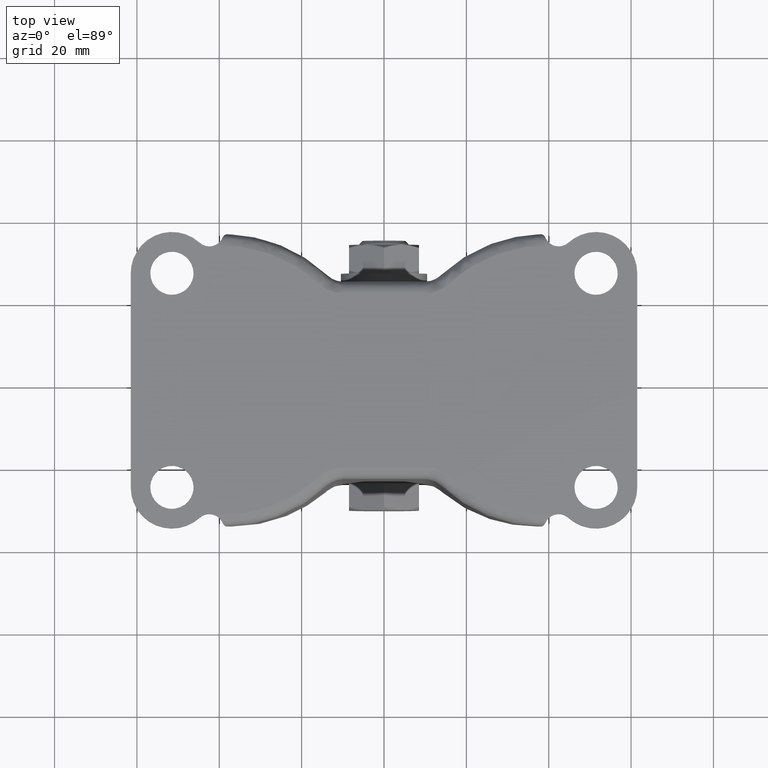
[diagram: clean part render]
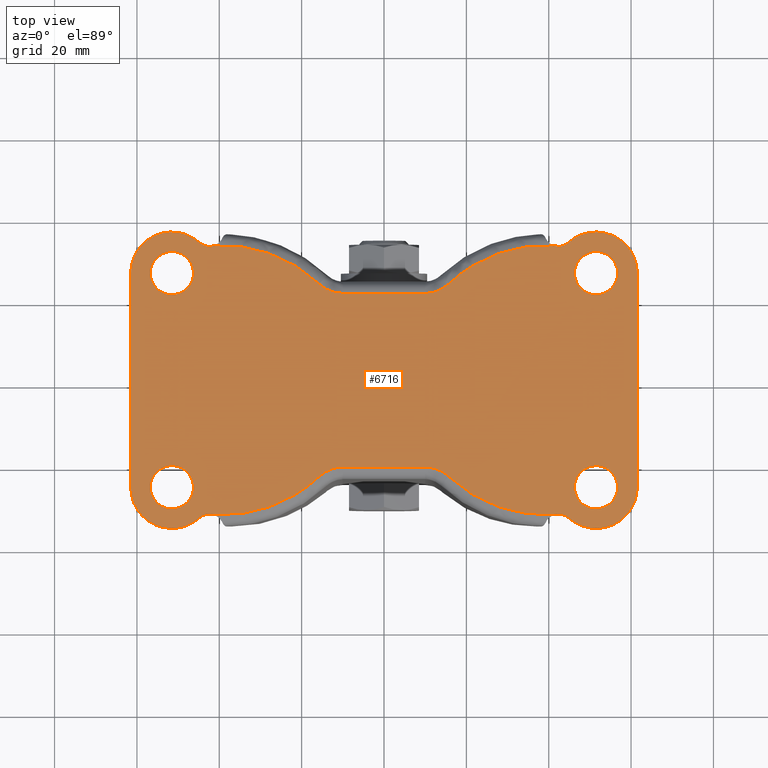
[diagram: same view with one face highlighted and labeled with its STEP entity id]
A machine part, top view. The second image highlights one B-rep face of the part: STEP entity #6716.
In plain terms, the highlighted face is a freeform B-spline surface patch.
Its self-contained STEP definition (entity closure, byte-faithful):
#2359=CARTESIAN_POINT('',(-51.820504832809867,20.759792308300600,1.318390E-016));
#2360=VERTEX_POINT('',#2359);
#2361=CARTESIAN_POINT('',(-46.250000000000000,26.0,0.0));
#2362=VERTEX_POINT('',#2361);
#2363=CARTESIAN_POINT('',(-51.820504832809881,20.759792308300604,0.0));
#2364=CARTESIAN_POINT('',(-51.660402007443885,20.749999999999996,0.0));
#2365=CARTESIAN_POINT('',(-51.500000000000000,20.750000000000000,0.0));
#2366=CARTESIAN_POINT('',(-46.249999999999993,20.750000000000000,0.0));
#2367=CARTESIAN_POINT('',(-46.250000000000000,26.0,0.0));
#2375=(BOUNDED_CURVE()B_SPLINE_CURVE(2,(#2363,#2364,#2365,#2366,#2367),.UNSPECIFIED.,.F.,.U.)B_SPLINE_CURVE_WITH_KNOTS((3,2,3),(0.239332962233675,0.250000000000000,0.500000000000000),.UNSPECIFIED.)CURVE()GEOMETRIC_REPRESENTATION_ITEM()RATIONAL_B_SPLINE_CURVE((0.976072041655427,0.987502787893665,1.0,0.707106781186547,1.0))REPRESENTATION_ITEM(''));
#2376=EDGE_CURVE('',#2360,#2362,#2375,.T.);
#2378=CARTESIAN_POINT('',(-51.179495167190133,31.240207691699400,1.318390E-016));
#2379=VERTEX_POINT('',#2378);
#2380=CARTESIAN_POINT('',(-46.250000000000000,26.0,0.0));
#2381=CARTESIAN_POINT('',(-46.250000000000000,30.938706851017070,0.0));
#2382=CARTESIAN_POINT('',(-51.179495167190126,31.240207691699403,0.0));
#2390=(BOUNDED_CURVE()B_SPLINE_CURVE(2,(#2380,#2381,#2382),.UNSPECIFIED.,.F.,.U.)B_SPLINE_CURVE_WITH_KNOTS((3,3),(0.500000000000000,0.739332962233675),.UNSPECIFIED.)CURVE()GEOMETRIC_REPRESENTATION_ITEM()RATIONAL_B_SPLINE_CURVE((1.0,0.719603993292882,0.976072041655427))REPRESENTATION_ITEM(''));
#2391=EDGE_CURVE('',#2362,#2379,#2390,.T.);
#2458=CARTESIAN_POINT('',(-56.749999999999993,26.0,0.0));
#2459=VERTEX_POINT('',#2458);
#2460=CARTESIAN_POINT('',(-56.749999999999993,26.0,0.0));
#2461=CARTESIAN_POINT('',(-56.749999999999979,21.061293148982934,0.0));
#2462=CARTESIAN_POINT('',(-51.820504832809881,20.759792308300604,0.0));
#2470=(BOUNDED_CURVE()B_SPLINE_CURVE(2,(#2460,#2461,#2462),.UNSPECIFIED.,.F.,.U.)B_SPLINE_CURVE_WITH_KNOTS((3,3),(0.0,0.239332962233675),.UNSPECIFIED.)CURVE()GEOMETRIC_REPRESENTATION_ITEM()RATIONAL_B_SPLINE_CURVE((1.0,0.719603993292882,0.976072041655427))REPRESENTATION_ITEM(''));
#2471=EDGE_CURVE('',#2459,#2360,#2470,.T.);
#2505=CARTESIAN_POINT('',(-51.179495167190140,31.240207691699403,0.0));
#2506=CARTESIAN_POINT('',(-51.339597992556122,31.250000000000000,0.0));
#2507=CARTESIAN_POINT('',(-51.500000000000000,31.250000000000000,0.0));
#2508=CARTESIAN_POINT('',(-56.749999999999993,31.250000000000004,0.0));
#2509=CARTESIAN_POINT('',(-56.749999999999993,26.0,0.0));
#2517=(BOUNDED_CURVE()B_SPLINE_CURVE(2,(#2505,#2506,#2507,#2508,#2509),.UNSPECIFIED.,.F.,.U.)B_SPLINE_CURVE_WITH_KNOTS((3,2,3),(0.739332962233675,0.750000000000000,1.0),.UNSPECIFIED.)CURVE()GEOMETRIC_REPRESENTATION_ITEM()RATIONAL_B_SPLINE_CURVE((0.976072041655427,0.987502787893665,1.0,0.707106781186547,1.0))REPRESENTATION_ITEM(''));
#2518=EDGE_CURVE('',#2379,#2459,#2517,.T.);
#2541=CARTESIAN_POINT('',(-51.820504832809867,-31.240207691699400,1.318390E-016));
#2542=VERTEX_POINT('',#2541);
#2543=CARTESIAN_POINT('',(-46.250000000000000,-26.0,0.0));
#2544=VERTEX_POINT('',#2543);
#2545=CARTESIAN_POINT('',(-51.820504832809867,-31.240207691699403,0.0));
#2546=CARTESIAN_POINT('',(-51.660402007443878,-31.250000000000000,0.0));
#2547=CARTESIAN_POINT('',(-51.500000000000000,-31.250000000000000,0.0));
#2548=CARTESIAN_POINT('',(-46.249999999999993,-31.250000000000004,0.0));
#2549=CARTESIAN_POINT('',(-46.250000000000000,-26.0,0.0));
#2557=(BOUNDED_CURVE()B_SPLINE_CURVE(2,(#2545,#2546,#2547,#2548,#2549),.UNSPECIFIED.,.F.,.U.)B_SPLINE_CURVE_WITH_KNOTS((3,2,3),(0.239332962233675,0.250000000000000,0.500000000000000),.UNSPECIFIED.)CURVE()GEOMETRIC_REPRESENTATION_ITEM()RATIONAL_B_SPLINE_CURVE((0.976072041655427,0.987502787893665,1.0,0.707106781186547,1.0))REPRESENTATION_ITEM(''));
#2558=EDGE_CURVE('',#2542,#2544,#2557,.T.);
#2560=CARTESIAN_POINT('',(-51.179495167190133,-20.759792308300600,1.318390E-016));
#2561=VERTEX_POINT('',#2560);
#2562=CARTESIAN_POINT('',(-46.250000000000000,-26.0,0.0));
#2563=CARTESIAN_POINT('',(-46.250000000000000,-21.061293148982930,0.0));
#2564=CARTESIAN_POINT('',(-51.179495167190126,-20.759792308300611,0.0));
#2572=(BOUNDED_CURVE()B_SPLINE_CURVE(2,(#2562,#2563,#2564),.UNSPECIFIED.,.F.,.U.)B_SPLINE_CURVE_WITH_KNOTS((3,3),(0.500000000000000,0.739332962233675),.UNSPECIFIED.)CURVE()GEOMETRIC_REPRESENTATION_ITEM()RATIONAL_B_SPLINE_CURVE((1.0,0.719603993292882,0.976072041655427))REPRESENTATION_ITEM(''));
#2573=EDGE_CURVE('',#2544,#2561,#2572,.T.);
#2640=CARTESIAN_POINT('',(-56.749999999999993,-26.0,0.0));
#2641=VERTEX_POINT('',#2640);
#2642=CARTESIAN_POINT('',(-56.749999999999993,-26.0,0.0));
#2643=CARTESIAN_POINT('',(-56.749999999999979,-30.938706851017077,0.0));
#2644=CARTESIAN_POINT('',(-51.820504832809867,-31.240207691699403,0.0));
#2652=(BOUNDED_CURVE()B_SPLINE_CURVE(2,(#2642,#2643,#2644),.UNSPECIFIED.,.F.,.U.)B_SPLINE_CURVE_WITH_KNOTS((3,3),(0.0,0.239332962233675),.UNSPECIFIED.)CURVE()GEOMETRIC_REPRESENTATION_ITEM()RATIONAL_B_SPLINE_CURVE((1.0,0.719603993292882,0.976072041655427))REPRESENTATION_ITEM(''));
#2653=EDGE_CURVE('',#2641,#2542,#2652,.T.);
#2687=CARTESIAN_POINT('',(-51.179495167190126,-20.759792308300611,0.0));
#2688=CARTESIAN_POINT('',(-51.339597992556115,-20.749999999999996,0.0));
#2689=CARTESIAN_POINT('',(-51.500000000000000,-20.750000000000000,0.0));
#2690=CARTESIAN_POINT('',(-56.749999999999993,-20.750000000000000,0.0));
#2691=CARTESIAN_POINT('',(-56.749999999999993,-26.0,0.0));
#2699=(BOUNDED_CURVE()B_SPLINE_CURVE(2,(#2687,#2688,#2689,#2690,#2691),.UNSPECIFIED.,.F.,.U.)B_SPLINE_CURVE_WITH_KNOTS((3,2,3),(0.739332962233675,0.750000000000000,1.0),.UNSPECIFIED.)CURVE()GEOMETRIC_REPRESENTATION_ITEM()RATIONAL_B_SPLINE_CURVE((0.976072041655427,0.987502787893665,1.0,0.707106781186547,1.0))REPRESENTATION_ITEM(''));
#2700=EDGE_CURVE('',#2561,#2641,#2699,.T.);
#2723=CARTESIAN_POINT('',(51.179495167190119,20.759792308300600,1.318390E-016));
#2724=VERTEX_POINT('',#2723);
#2725=CARTESIAN_POINT('',(56.749999999999993,26.0,0.0));
#2726=VERTEX_POINT('',#2725);
#2727=CARTESIAN_POINT('',(51.179495167190119,20.759792308300604,0.0));
#2728=CARTESIAN_POINT('',(51.339597992556115,20.750000000000004,0.0));
#2729=CARTESIAN_POINT('',(51.500000000000000,20.750000000000000,0.0));
#2730=CARTESIAN_POINT('',(56.749999999999993,20.750000000000000,0.0));
#2731=CARTESIAN_POINT('',(56.749999999999993,26.0,0.0));
#2739=(BOUNDED_CURVE()B_SPLINE_CURVE(2,(#2727,#2728,#2729,#2730,#2731),.UNSPECIFIED.,.F.,.U.)B_SPLINE_CURVE_WITH_KNOTS((3,2,3),(0.239332962233675,0.250000000000000,0.500000000000000),.UNSPECIFIED.)CURVE()GEOMETRIC_REPRESENTATION_ITEM()RATIONAL_B_SPLINE_CURVE((0.976072041655426,0.987502787893665,1.0,0.707106781186547,1.0))REPRESENTATION_ITEM(''));
#2740=EDGE_CURVE('',#2724,#2726,#2739,.T.);
#2742=CARTESIAN_POINT('',(51.820504832809867,31.240207691699400,1.318390E-016));
#2743=VERTEX_POINT('',#2742);
#2744=CARTESIAN_POINT('',(56.749999999999993,26.0,0.0));
#2745=CARTESIAN_POINT('',(56.749999999999972,30.938706851017070,0.0));
#2746=CARTESIAN_POINT('',(51.820504832809881,31.240207691699403,0.0));
#2754=(BOUNDED_CURVE()B_SPLINE_CURVE(2,(#2744,#2745,#2746),.UNSPECIFIED.,.F.,.U.)B_SPLINE_CURVE_WITH_KNOTS((3,3),(0.500000000000000,0.739332962233675),.UNSPECIFIED.)CURVE()GEOMETRIC_REPRESENTATION_ITEM()RATIONAL_B_SPLINE_CURVE((1.0,0.719603993292882,0.976072041655427))REPRESENTATION_ITEM(''));
#2755=EDGE_CURVE('',#2726,#2743,#2754,.T.);
#2822=CARTESIAN_POINT('',(46.250000000000000,26.0,0.0));
#2823=VERTEX_POINT('',#2822);
#2824=CARTESIAN_POINT('',(46.250000000000000,26.0,0.0));
#2825=CARTESIAN_POINT('',(46.250000000000000,21.061293148982930,0.0));
#2826=CARTESIAN_POINT('',(51.179495167190133,20.759792308300600,0.0));
#2834=(BOUNDED_CURVE()B_SPLINE_CURVE(2,(#2824,#2825,#2826),.UNSPECIFIED.,.F.,.U.)B_SPLINE_CURVE_WITH_KNOTS((3,3),(0.0,0.239332962233675),.UNSPECIFIED.)CURVE()GEOMETRIC_REPRESENTATION_ITEM()RATIONAL_B_SPLINE_CURVE((1.0,0.719603993292882,0.976072041655427))REPRESENTATION_ITEM(''));
#2835=EDGE_CURVE('',#2823,#2724,#2834,.T.);
#2869=CARTESIAN_POINT('',(51.820504832809867,31.240207691699403,0.0));
#2870=CARTESIAN_POINT('',(51.660402007443878,31.250000000000000,0.0));
#2871=CARTESIAN_POINT('',(51.500000000000000,31.250000000000000,0.0));
#2872=CARTESIAN_POINT('',(46.249999999999993,31.250000000000004,0.0));
#2873=CARTESIAN_POINT('',(46.250000000000000,26.0,0.0));
#2881=(BOUNDED_CURVE()B_SPLINE_CURVE(2,(#2869,#2870,#2871,#2872,#2873),.UNSPECIFIED.,.F.,.U.)B_SPLINE_CURVE_WITH_KNOTS((3,2,3),(0.739332962233675,0.750000000000000,1.0),.UNSPECIFIED.)CURVE()GEOMETRIC_REPRESENTATION_ITEM()RATIONAL_B_SPLINE_CURVE((0.976072041655427,0.987502787893665,1.0,0.707106781186547,1.0))REPRESENTATION_ITEM(''));
#2882=EDGE_CURVE('',#2743,#2823,#2881,.T.);
#2905=CARTESIAN_POINT('',(51.179495167190119,-31.240207691699400,1.318390E-016));
#2906=VERTEX_POINT('',#2905);
#2907=CARTESIAN_POINT('',(56.749999999999993,-26.0,0.0));
#2908=VERTEX_POINT('',#2907);
#2909=CARTESIAN_POINT('',(51.179495167190140,-31.240207691699400,0.0));
#2910=CARTESIAN_POINT('',(51.339597992556122,-31.249999999999996,0.0));
#2911=CARTESIAN_POINT('',(51.500000000000000,-31.250000000000000,0.0));
#2912=CARTESIAN_POINT('',(56.749999999999993,-31.250000000000004,0.0));
#2913=CARTESIAN_POINT('',(56.749999999999993,-26.0,0.0));
#2921=(BOUNDED_CURVE()B_SPLINE_CURVE(2,(#2909,#2910,#2911,#2912,#2913),.UNSPECIFIED.,.F.,.U.)B_SPLINE_CURVE_WITH_KNOTS((3,2,3),(0.239332962233675,0.250000000000000,0.500000000000000),.UNSPECIFIED.)CURVE()GEOMETRIC_REPRESENTATION_ITEM()RATIONAL_B_SPLINE_CURVE((0.976072041655426,0.987502787893665,1.0,0.707106781186547,1.0))REPRESENTATION_ITEM(''));
#2922=EDGE_CURVE('',#2906,#2908,#2921,.T.);
#2924=CARTESIAN_POINT('',(51.820504832809867,-20.759792308300600,1.318390E-016));
#2925=VERTEX_POINT('',#2924);
#2926=CARTESIAN_POINT('',(56.749999999999993,-26.0,0.0));
#2927=CARTESIAN_POINT('',(56.749999999999972,-21.061293148982930,0.0));
#2928=CARTESIAN_POINT('',(51.820504832809881,-20.759792308300611,0.0));
#2936=(BOUNDED_CURVE()B_SPLINE_CURVE(2,(#2926,#2927,#2928),.UNSPECIFIED.,.F.,.U.)B_SPLINE_CURVE_WITH_KNOTS((3,3),(0.500000000000000,0.739332962233675),.UNSPECIFIED.)CURVE()GEOMETRIC_REPRESENTATION_ITEM()RATIONAL_B_SPLINE_CURVE((1.0,0.719603993292882,0.976072041655427))REPRESENTATION_ITEM(''));
#2937=EDGE_CURVE('',#2908,#2925,#2936,.T.);
#3004=CARTESIAN_POINT('',(46.250000000000000,-26.0,0.0));
#3005=VERTEX_POINT('',#3004);
#3006=CARTESIAN_POINT('',(46.250000000000000,-26.0,0.0));
#3007=CARTESIAN_POINT('',(46.250000000000000,-30.938706851017066,0.0));
#3008=CARTESIAN_POINT('',(51.179495167190140,-31.240207691699400,0.0));
#3016=(BOUNDED_CURVE()B_SPLINE_CURVE(2,(#3006,#3007,#3008),.UNSPECIFIED.,.F.,.U.)B_SPLINE_CURVE_WITH_KNOTS((3,3),(0.0,0.239332962233675),.UNSPECIFIED.)CURVE()GEOMETRIC_REPRESENTATION_ITEM()RATIONAL_B_SPLINE_CURVE((1.0,0.719603993292882,0.976072041655426))REPRESENTATION_ITEM(''));
#3017=EDGE_CURVE('',#3005,#2906,#3016,.T.);
#3051=CARTESIAN_POINT('',(51.820504832809867,-20.759792308300604,0.0));
#3052=CARTESIAN_POINT('',(51.660402007443878,-20.749999999999996,0.0));
#3053=CARTESIAN_POINT('',(51.500000000000000,-20.750000000000000,0.0));
#3054=CARTESIAN_POINT('',(46.249999999999993,-20.750000000000000,0.0));
#3055=CARTESIAN_POINT('',(46.250000000000000,-26.0,0.0));
#3063=(BOUNDED_CURVE()B_SPLINE_CURVE(2,(#3051,#3052,#3053,#3054,#3055),.UNSPECIFIED.,.F.,.U.)B_SPLINE_CURVE_WITH_KNOTS((3,2,3),(0.739332962233675,0.750000000000000,1.0),.UNSPECIFIED.)CURVE()GEOMETRIC_REPRESENTATION_ITEM()RATIONAL_B_SPLINE_CURVE((0.976072041655427,0.987502787893665,1.0,0.707106781186547,1.0))REPRESENTATION_ITEM(''));
#3064=EDGE_CURVE('',#2925,#3005,#3063,.T.);
#4044=CARTESIAN_POINT('',(-61.500000000000000,-26.0,0.0));
#4045=VERTEX_POINT('',#4044);
#4046=CARTESIAN_POINT('',(-44.782090500815002,-33.407407390839403,0.0));
#4047=VERTEX_POINT('',#4046);
#4048=CARTESIAN_POINT('',(-61.500000000000000,-26.0,0.0));
#4049=CARTESIAN_POINT('',(-61.500398466991641,-26.991521464954801,0.0));
#4050=CARTESIAN_POINT('',(-61.274743914934170,-28.493468587668609,0.0));
#4051=CARTESIAN_POINT('',(-60.525822072085901,-30.400790700698220,0.0));
#4052=CARTESIAN_POINT('',(-59.822728471220032,-31.595904799884519,0.0));
#4053=CARTESIAN_POINT('',(-58.879134221229911,-32.805586696100157,0.0));
#4054=CARTESIAN_POINT('',(-57.784470126972572,-33.845139797911052,0.0));
#4055=CARTESIAN_POINT('',(-56.301119822848342,-34.825117580906010,0.0));
#4056=CARTESIAN_POINT('',(-54.922100953797347,-35.436105818748651,0.0));
#4057=CARTESIAN_POINT('',(-53.268044072261212,-35.891039993520792,0.0));
#4058=CARTESIAN_POINT('',(-51.614493909470987,-36.059674033107143,0.0));
#4059=CARTESIAN_POINT('',(-49.572525274457547,-35.880203071400317,0.0));
#4060=CARTESIAN_POINT('',(-47.831163044045489,-35.368292805564863,0.0));
#4061=CARTESIAN_POINT('',(-46.143780749048162,-34.499803943779263,0.0));
#4062=CARTESIAN_POINT('',(-45.249391280311841,-33.831308928272414,0.0));
#4063=CARTESIAN_POINT('',(-44.782090500815002,-33.407407390839403,0.0));
#4064=B_SPLINE_CURVE_WITH_KNOTS('',3,(#4048,#4049,#4050,#4051,#4052,#4053,#4054,#4055,#4056,#4057,#4058,#4059,#4060,#4061,#4062,#4063),.UNSPECIFIED.,.F.,.U.,(4,1,1,1,1,1,1,1,1,1,1,1,1,4),(0.000000072688191,2.974409539399606,4.506680842081142,6.129109343518056,7.120597783297692,9.103528682393405,10.635864247580891,12.438421431263830,13.610171432831590,15.773432334682820,17.395846362430600,19.739358620826511,21.181520612456019,23.074280991551731),.UNSPECIFIED.);
#4065=EDGE_CURVE('',#4045,#4047,#4064,.T.);
#4160=CARTESIAN_POINT('',(-41.530390479089498,-32.617807948068247,0.0));
#4161=VERTEX_POINT('',#4160);
#4176=CARTESIAN_POINT('',(-41.530390479089469,-32.617807948068148,0.0));
#4177=CARTESIAN_POINT('',(-43.371105181389041,-32.127759626297944,0.0));
#4178=CARTESIAN_POINT('',(-44.782090500815052,-33.407407390839339,0.0));
#4186=(BOUNDED_CURVE()B_SPLINE_CURVE(2,(#4176,#4177,#4178),.UNSPECIFIED.,.F.,.U.)CURVE()GEOMETRIC_REPRESENTATION_ITEM()QUASI_UNIFORM_CURVE()RATIONAL_B_SPLINE_CURVE((1.0,0.878344682571564,1.0))REPRESENTATION_ITEM(''));
#4187=EDGE_CURVE('',#4161,#4047,#4186,.T.);
#4211=CARTESIAN_POINT('',(-44.782089997670951,33.407407454744998,0.0));
#4212=VERTEX_POINT('',#4211);
#4213=CARTESIAN_POINT('',(-61.500000000000000,26.0,0.0));
#4214=VERTEX_POINT('',#4213);
#4215=CARTESIAN_POINT('',(-44.782089997670951,33.407407454744998,0.0));
#4216=CARTESIAN_POINT('',(-45.405083122775373,33.972759740858919,0.0));
#4217=CARTESIAN_POINT('',(-46.546795683425870,34.770904828055258,0.0));
#4218=CARTESIAN_POINT('',(-48.432246184779338,35.575074712582762,0.0));
#4219=CARTESIAN_POINT('',(-50.140102571989289,35.962114730231761,0.0));
#4220=CARTESIAN_POINT('',(-51.826639198604738,36.033944633906380,0.0));
#4221=CARTESIAN_POINT('',(-53.203812665395709,35.880933207224132,0.0));
#4222=CARTESIAN_POINT('',(-54.519981838451720,35.563246633610547,0.0));
#4223=CARTESIAN_POINT('',(-56.066703810751910,34.967972435864489,0.0));
#4224=CARTESIAN_POINT('',(-57.475183742917302,34.082347561688728,0.0));
#4225=CARTESIAN_POINT('',(-58.660712729828177,33.015742099594583,0.0));
#4226=CARTESIAN_POINT('',(-59.511210380519863,32.039347686287933,0.0));
#4227=CARTESIAN_POINT('',(-60.234054311130038,30.928400481849280,0.0));
#4228=CARTESIAN_POINT('',(-60.883455838687283,29.570910358795921,0.0));
#4229=CARTESIAN_POINT('',(-61.371445362180182,27.952863843189711,0.0));
#4230=CARTESIAN_POINT('',(-61.500086933350786,26.660979945030729,0.0));
#4231=CARTESIAN_POINT('',(-61.500000000000000,26.0,0.0));
#4232=B_SPLINE_CURVE_WITH_KNOTS('',3,(#4215,#4216,#4217,#4218,#4219,#4220,#4221,#4222,#4223,#4224,#4225,#4226,#4227,#4228,#4229,#4230,#4231),.UNSPECIFIED.,.F.,.U.,(4,1,1,1,1,1,1,1,1,1,1,1,1,1,4),(0.000000219927067,2.523741394084517,4.146154616843734,6.129109539009477,7.751530753906604,9.193705739910952,10.275282094356189,11.807524255209120,14.151010093106530,15.232606239752100,16.584631215615168,18.026787005913899,19.198528070599810,21.091351935422072,23.074281322189979),.UNSPECIFIED.);
#4233=EDGE_CURVE('',#4212,#4214,#4232,.T.);
#4277=CARTESIAN_POINT('',(-61.500000000000000,-26.0,0.0));
#4278=CARTESIAN_POINT('',(-61.500000000000000,26.0,0.0));
#4279=QUASI_UNIFORM_CURVE('',1,(#4277,#4278),.UNSPECIFIED.,.F.,.U.);
#4280=EDGE_CURVE('',#4045,#4214,#4279,.T.);
#5788=CARTESIAN_POINT('',(41.530389155085253,-32.617808034327098,0.0));
#5789=VERTEX_POINT('',#5788);
#5809=CARTESIAN_POINT('',(15.730752308236500,-23.383727355105648,0.0));
#5810=VERTEX_POINT('',#5809);
#5811=CARTESIAN_POINT('',(15.730752308236500,-23.383727355105648,0.0));
#5812=CARTESIAN_POINT('',(16.799843822609130,-24.390382765702299,0.0));
#5813=CARTESIAN_POINT('',(18.614544225718181,-25.890409100712549,0.0));
#5814=CARTESIAN_POINT('',(21.060326051722601,-27.520154236470599,0.0));
#5815=CARTESIAN_POINT('',(23.094229175185252,-28.697856310960219,0.0));
#5816=CARTESIAN_POINT('',(26.187500037835751,-30.233218086341161,0.0));
#5817=CARTESIAN_POINT('',(30.085741357896890,-31.589745266251100,0.0));
#5818=CARTESIAN_POINT('',(34.344981564324343,-32.414779185129468,0.0));
#5819=CARTESIAN_POINT('',(37.932346979242467,-32.737423035625291,0.0));
#5820=CARTESIAN_POINT('',(40.285203074955760,-32.704066679099199,0.0));
#5821=CARTESIAN_POINT('',(41.530389155085253,-32.617808034327098,0.0));
#5822=B_SPLINE_CURVE_WITH_KNOTS('',3,(#5811,#5812,#5813,#5814,#5815,#5816,#5817,#5818,#5819,#5820,#5821),.UNSPECIFIED.,.F.,.U.,(4,1,1,1,1,1,1,1,4),(0.000000043887653,4.405318912073632,7.048534141867084,8.810685139440114,11.453862682230060,17.401052557683389,21.145595819056531,24.449594201482491,28.194121215169840),.UNSPECIFIED.);
#5823=EDGE_CURVE('',#5810,#5789,#5822,.T.);
#5858=CARTESIAN_POINT('',(9.973044181806790,-21.100000000000001,0.0));
#5859=VERTEX_POINT('',#5858);
#5875=CARTESIAN_POINT('',(9.973044181806790,-21.100000000000019,0.0));
#5876=CARTESIAN_POINT('',(13.304804988808460,-21.100000208874643,0.0));
#5877=CARTESIAN_POINT('',(15.730752308236500,-23.383727355105648,0.0));
#5885=(BOUNDED_CURVE()B_SPLINE_CURVE(2,(#5875,#5876,#5877),.UNSPECIFIED.,.F.,.U.)CURVE()GEOMETRIC_REPRESENTATION_ITEM()QUASI_UNIFORM_CURVE()RATIONAL_B_SPLINE_CURVE((1.0,0.929550358719856,1.0))REPRESENTATION_ITEM(''));
#5886=EDGE_CURVE('',#5859,#5810,#5885,.T.);
#5905=CARTESIAN_POINT('',(-9.973043655194140,-21.100000000000001,0.0));
#5906=VERTEX_POINT('',#5905);
#5922=CARTESIAN_POINT('',(-9.973043655194140,-21.100000000000001,0.0));
#5923=CARTESIAN_POINT('',(9.973044181806790,-21.100000000000001,0.0));
#5924=QUASI_UNIFORM_CURVE('',1,(#5922,#5923),.UNSPECIFIED.,.F.,.U.);
#5925=EDGE_CURVE('',#5906,#5859,#5924,.T.);
#5947=CARTESIAN_POINT('',(-15.730752308236349,-23.383727355105648,0.0));
#5948=VERTEX_POINT('',#5947);
#5964=CARTESIAN_POINT('',(-15.730752308236340,-23.383727355105659,0.0));
#5965=CARTESIAN_POINT('',(-13.304804766925892,-21.099999999999998,0.0));
#5966=CARTESIAN_POINT('',(-9.973043655194129,-21.100000000000001,0.0));
#5974=(BOUNDED_CURVE()B_SPLINE_CURVE(2,(#5964,#5965,#5966),.UNSPECIFIED.,.F.,.U.)CURVE()GEOMETRIC_REPRESENTATION_ITEM()QUASI_UNIFORM_CURVE()RATIONAL_B_SPLINE_CURVE((1.0,0.929550347162744,1.0))REPRESENTATION_ITEM(''));
#5975=EDGE_CURVE('',#5948,#5906,#5974,.T.);
#6022=CARTESIAN_POINT('',(-41.530390479089498,-32.617807948068247,0.0));
#6023=CARTESIAN_POINT('',(-40.431700804004556,-32.693869317411917,0.0));
#6024=CARTESIAN_POINT('',(-38.079870488776827,-32.742541898362781,0.0));
#6025=CARTESIAN_POINT('',(-34.855714120558162,-32.473312372224711,0.0));
#6026=CARTESIAN_POINT('',(-31.744725405660930,-31.921961716906068,0.0));
#6027=CARTESIAN_POINT('',(-29.400681142383291,-31.298791897911268,0.0));
#6028=CARTESIAN_POINT('',(-26.967528082099449,-30.470038827379071,0.0));
#6029=CARTESIAN_POINT('',(-24.390729492913358,-29.392744956784831,0.0));
#6030=CARTESIAN_POINT('',(-21.287227099216519,-27.711882657406409,0.0));
#6031=CARTESIAN_POINT('',(-18.321044165889120,-25.666717094559260,0.0));
#6032=CARTESIAN_POINT('',(-16.532632683720131,-24.138633463202300,0.0));
#6033=CARTESIAN_POINT('',(-15.730752308236349,-23.383727355105648,0.0));
#6034=B_SPLINE_CURVE_WITH_KNOTS('',3,(#6022,#6023,#6024,#6025,#6026,#6027,#6028,#6029,#6030,#6031,#6032,#6033),.UNSPECIFIED.,.F.,.U.,(4,1,1,1,1,1,1,1,1,4),(0.000000988137785,3.303996131079181,7.048526358527550,9.691744083334150,12.775459702739459,14.317340132755920,17.401055455931019,21.145588133995169,24.890127919710160,28.194122464699770),.UNSPECIFIED.);
#6035=EDGE_CURVE('',#4161,#5948,#6034,.T.);
#6080=CARTESIAN_POINT('',(41.530389135318650,32.617808039589498,0.0));
#6081=VERTEX_POINT('',#6080);
#6145=CARTESIAN_POINT('',(15.730752308236500,23.383727355105648,0.0));
#6146=VERTEX_POINT('',#6145);
#6160=CARTESIAN_POINT('',(41.530389135318650,32.617808039589498,0.0));
#6161=CARTESIAN_POINT('',(40.431698463770132,32.693875858158911,0.0));
#6162=CARTESIAN_POINT('',(38.079877947086892,32.742539708942552,0.0));
#6163=CARTESIAN_POINT('',(35.148799743707720,32.497765433841629,0.0));
#6164=CARTESIAN_POINT('',(32.177291346499644,32.010084188221207,0.0));
#6165=CARTESIAN_POINT('',(29.820742156053910,31.432840870679879,0.0));
#6166=CARTESIAN_POINT('',(26.824384953872041,30.433887287246801,0.0));
#6167=CARTESIAN_POINT('',(24.125178344063428,29.263904934157178,0.0));
#6168=CARTESIAN_POINT('',(21.045149835110450,27.544899388029570,0.0));
#6169=CARTESIAN_POINT('',(18.321019677262271,25.666722737114469,0.0));
#6170=CARTESIAN_POINT('',(16.532637235135471,24.138632347101549,0.0));
#6171=CARTESIAN_POINT('',(15.730752308236500,23.383727355105648,0.0));
#6172=B_SPLINE_CURVE_WITH_KNOTS('',3,(#6160,#6161,#6162,#6163,#6164,#6165,#6166,#6167,#6168,#6169,#6170,#6171),.UNSPECIFIED.,.F.,.U.,(4,1,1,1,1,1,1,1,1,4),(0.000000988134509,3.303995973178765,7.048526021676921,8.810685733212402,12.334923125439749,14.317339448525569,18.282110873377110,21.145587123443800,24.890126730204909,28.194121117296181),.UNSPECIFIED.);
#6173=EDGE_CURVE('',#6081,#6146,#6172,.T.);
#6197=CARTESIAN_POINT('',(9.973043655194299,21.100000000000001,0.0));
#6198=VERTEX_POINT('',#6197);
#6212=CARTESIAN_POINT('',(15.730752308236500,23.383727355105648,0.0));
#6213=CARTESIAN_POINT('',(13.304804766926058,21.100000000000001,0.0));
#6214=CARTESIAN_POINT('',(9.973043655194299,21.100000000000001,0.0));
#6222=(BOUNDED_CURVE()B_SPLINE_CURVE(2,(#6212,#6213,#6214),.UNSPECIFIED.,.F.,.U.)CURVE()GEOMETRIC_REPRESENTATION_ITEM()QUASI_UNIFORM_CURVE()RATIONAL_B_SPLINE_CURVE((1.0,0.929550347162744,1.0))REPRESENTATION_ITEM(''));
#6223=EDGE_CURVE('',#6146,#6198,#6222,.T.);
#6258=CARTESIAN_POINT('',(-9.973044181806579,21.100000000000001,0.0));
#6259=VERTEX_POINT('',#6258);
#6273=CARTESIAN_POINT('',(9.973043655194299,21.100000000000001,0.0));
#6274=CARTESIAN_POINT('',(-9.973044181806579,21.100000000000001,0.0));
#6275=QUASI_UNIFORM_CURVE('',1,(#6273,#6274),.UNSPECIFIED.,.F.,.U.);
#6276=EDGE_CURVE('',#6198,#6259,#6275,.T.);
#6306=CARTESIAN_POINT('',(-15.730752308236349,23.383727355105648,0.0));
#6307=VERTEX_POINT('',#6306);
#6321=CARTESIAN_POINT('',(-9.973044181806577,21.100000000000019,0.0));
#6322=CARTESIAN_POINT('',(-13.304804988808282,21.100000208874626,0.0));
#6323=CARTESIAN_POINT('',(-15.730752308236340,23.383727355105648,0.0));
#6331=(BOUNDED_CURVE()B_SPLINE_CURVE(2,(#6321,#6322,#6323),.UNSPECIFIED.,.F.,.U.)CURVE()GEOMETRIC_REPRESENTATION_ITEM()QUASI_UNIFORM_CURVE()RATIONAL_B_SPLINE_CURVE((1.0,0.929550358719855,1.0))REPRESENTATION_ITEM(''));
#6332=EDGE_CURVE('',#6259,#6307,#6331,.T.);
#6465=CARTESIAN_POINT('',(-41.530390510604349,32.617807939678137,0.0));
#6466=VERTEX_POINT('',#6465);
#6486=CARTESIAN_POINT('',(-15.730752308236349,23.383727355105648,0.0));
#6487=CARTESIAN_POINT('',(-16.799831587859899,24.390394072582151,0.0));
#6488=CARTESIAN_POINT('',(-18.614583577269510,25.890373120417220,0.0));
#6489=CARTESIAN_POINT('',(-21.549395301626848,27.846172731487741,0.0));
#6490=CARTESIAN_POINT('',(-24.324334361513738,29.360563908874891,0.0));
#6491=CARTESIAN_POINT('',(-26.965751317147539,30.474898858567631,0.0));
#6492=CARTESIAN_POINT('',(-29.680128090262428,31.389820577777090,0.0));
#6493=CARTESIAN_POINT('',(-32.032894880195563,31.982297601818729,0.0));
#6494=CARTESIAN_POINT('',(-34.640895688701853,32.418799860219089,0.0));
#6495=CARTESIAN_POINT('',(-37.637263017452163,32.727058072153838,0.0));
#6496=CARTESIAN_POINT('',(-39.992219720706977,32.724470866796963,0.0));
#6497=CARTESIAN_POINT('',(-41.530390510604349,32.617807939678137,0.0));
#6498=B_SPLINE_CURVE_WITH_KNOTS('',3,(#6486,#6487,#6488,#6489,#6490,#6491,#6492,#6493,#6494,#6495,#6496,#6497),.UNSPECIFIED.,.F.,.U.,(4,1,1,1,1,1,1,1,1,4),(0.000000043882892,4.405319124337620,7.048534481496724,10.572796372450680,13.876781849153611,15.638932013587469,19.163176447922488,21.145596837951580,23.568527726760930,28.194122573694461),.UNSPECIFIED.);
#6499=EDGE_CURVE('',#6307,#6466,#6498,.T.);
#6582=CARTESIAN_POINT('',(-67.643849761602141,39.590585175877322,0.0));
#6583=CARTESIAN_POINT('',(67.643853060719209,39.590585175877322,0.0));
#6584=CARTESIAN_POINT('',(-67.643849761602141,-39.590586462985243,0.0));
#6585=CARTESIAN_POINT('',(67.643853060719209,-39.590586462985243,0.0));
#6586=B_SPLINE_SURFACE_WITH_KNOTS('',1,1,((#6582,#6584),(#6583,#6585)),.UNSPECIFIED.,.F.,.F.,.U.,(2,2),(2,2),(0.0,135.287702822321390),(0.0,79.181171638862565),.UNSPECIFIED.);
#6587=CARTESIAN_POINT('',(44.782089500815303,33.407407390839403,0.0));
#6588=VERTEX_POINT('',#6587);
#6589=CARTESIAN_POINT('',(41.530389135318650,32.617808039589498,0.0));
#6590=CARTESIAN_POINT('',(43.371104010605990,32.127759471411480,0.0));
#6591=CARTESIAN_POINT('',(44.782089500815353,33.407407390839332,0.0));
#6599=(BOUNDED_CURVE()B_SPLINE_CURVE(2,(#6589,#6590,#6591),.UNSPECIFIED.,.F.,.U.)CURVE()GEOMETRIC_REPRESENTATION_ITEM()QUASI_UNIFORM_CURVE()RATIONAL_B_SPLINE_CURVE((1.0,0.878344658277824,1.0))REPRESENTATION_ITEM(''));
#6600=EDGE_CURVE('',#6081,#6588,#6599,.T.);
#6601=ORIENTED_EDGE('',*,*,#6600,.F.);
#6602=ORIENTED_EDGE('',*,*,#6173,.T.);
#6603=ORIENTED_EDGE('',*,*,#6223,.T.);
#6604=ORIENTED_EDGE('',*,*,#6276,.T.);
#6605=ORIENTED_EDGE('',*,*,#6332,.T.);
#6606=ORIENTED_EDGE('',*,*,#6499,.T.);
#6607=CARTESIAN_POINT('',(-44.782089997670951,33.407407454744998,0.0));
#6608=CARTESIAN_POINT('',(-43.371104990517395,32.127759695480350,0.0));
#6609=CARTESIAN_POINT('',(-41.530390510604320,32.617807939678052,0.0));
#6617=(BOUNDED_CURVE()B_SPLINE_CURVE(2,(#6607,#6608,#6609),.UNSPECIFIED.,.F.,.U.)CURVE()GEOMETRIC_REPRESENTATION_ITEM()QUASI_UNIFORM_CURVE()RATIONAL_B_SPLINE_CURVE((1.0,0.878344707318429,1.0))REPRESENTATION_ITEM(''));
#6618=EDGE_CURVE('',#4212,#6466,#6617,.T.);
#6619=ORIENTED_EDGE('',*,*,#6618,.F.);
#6620=ORIENTED_EDGE('',*,*,#4233,.T.);
#6621=ORIENTED_EDGE('',*,*,#4280,.F.);
#6622=ORIENTED_EDGE('',*,*,#4065,.T.);
#6623=ORIENTED_EDGE('',*,*,#4187,.F.);
#6624=ORIENTED_EDGE('',*,*,#6035,.T.);
#6625=ORIENTED_EDGE('',*,*,#5975,.T.);
#6626=ORIENTED_EDGE('',*,*,#5925,.T.);
#6627=ORIENTED_EDGE('',*,*,#5886,.T.);
#6628=ORIENTED_EDGE('',*,*,#5823,.T.);
#6629=CARTESIAN_POINT('',(44.782089997671306,-33.407407454744998,0.0));
#6630=VERTEX_POINT('',#6629);
#6631=CARTESIAN_POINT('',(44.782089997671306,-33.407407454744998,0.0));
#6632=CARTESIAN_POINT('',(43.371104277810922,-32.127759411794415,0.0));
#6633=CARTESIAN_POINT('',(41.530389155085217,-32.617808034326998,0.0));
#6641=(BOUNDED_CURVE()B_SPLINE_CURVE(2,(#6631,#6632,#6633),.UNSPECIFIED.,.F.,.U.)CURVE()GEOMETRIC_REPRESENTATION_ITEM()QUASI_UNIFORM_CURVE()RATIONAL_B_SPLINE_CURVE((1.0,0.878344631609496,1.0))REPRESENTATION_ITEM(''));
#6642=EDGE_CURVE('',#6630,#5789,#6641,.T.);
#6643=ORIENTED_EDGE('',*,*,#6642,.F.);
#6644=CARTESIAN_POINT('',(61.500000000000000,-26.0,0.0));
#6645=VERTEX_POINT('',#6644);
#6646=CARTESIAN_POINT('',(44.782089997671306,-33.407407454744998,0.0));
#6647=CARTESIAN_POINT('',(45.516262545928917,-34.073824133124504,0.0));
#6648=CARTESIAN_POINT('',(46.805732026698472,-34.932469969837037,0.0));
#6649=CARTESIAN_POINT('',(48.612674329105843,-35.608389367810233,0.0));
#6650=CARTESIAN_POINT('',(50.081746201846180,-35.934404199784787,0.0));
#6651=CARTESIAN_POINT('',(51.434978034539647,-36.034921886112187,0.0));
#6652=CARTESIAN_POINT('',(53.056211448094743,-35.921133851351939,0.0));
#6653=CARTESIAN_POINT('',(54.850422034969228,-35.505370252559572,0.0));
#6654=CARTESIAN_POINT('',(56.571268721879790,-34.686395593826383,0.0));
#6655=CARTESIAN_POINT('',(58.202900941497568,-33.499580526473302,0.0));
#6656=CARTESIAN_POINT('',(59.532680737961833,-32.092425739148347,0.0));
#6657=CARTESIAN_POINT('',(60.582123783139807,-30.326680304936851,0.0));
#6658=CARTESIAN_POINT('',(61.310250245648490,-28.313279496744968,0.0));
#6659=CARTESIAN_POINT('',(61.500274546878728,-26.871310217856490,0.0));
#6660=CARTESIAN_POINT('',(61.500000000000000,-26.0,0.0));
#6661=B_SPLINE_CURVE_WITH_KNOTS('',3,(#6646,#6647,#6648,#6649,#6650,#6651,#6652,#6653,#6654,#6655,#6656,#6657,#6658,#6659,#6660),.UNSPECIFIED.,.F.,.U.,(4,1,1,1,1,1,1,1,1,1,1,1,4),(0.000000220128140,2.974409710226869,4.596825973534173,5.768571679265214,7.481123256982272,8.652867637137859,10.635864478663560,12.979260745294450,14.331257523520449,16.674774084295969,18.747860464471540,20.460441059032888,23.074281322188948),.UNSPECIFIED.);
#6662=EDGE_CURVE('',#6630,#6645,#6661,.T.);
#6663=ORIENTED_EDGE('',*,*,#6662,.T.);
#6664=CARTESIAN_POINT('',(61.500000000000000,26.0,0.0));
#6665=VERTEX_POINT('',#6664);
#6666=CARTESIAN_POINT('',(61.500000000000000,26.0,0.0));
#6667=CARTESIAN_POINT('',(61.500000000000000,-26.0,0.0));
#6668=QUASI_UNIFORM_CURVE('',1,(#6666,#6667),.UNSPECIFIED.,.F.,.U.);
#6669=EDGE_CURVE('',#6665,#6645,#6668,.T.);
#6670=ORIENTED_EDGE('',*,*,#6669,.F.);
#6671=CARTESIAN_POINT('',(61.500000000000000,26.0,0.0));
#6672=CARTESIAN_POINT('',(61.500088761771053,26.691024039347710,0.0));
#6673=CARTESIAN_POINT('',(61.340624713614233,28.223292357812269,0.0));
#6674=CARTESIAN_POINT('',(60.656786234411094,30.197807406157370,0.0));
#6675=CARTESIAN_POINT('',(59.725347332607143,31.748202416983521,0.0));
#6676=CARTESIAN_POINT('',(58.677864321791859,33.030489926082829,0.0));
#6677=CARTESIAN_POINT('',(57.359639382372713,34.184494377053241,0.0));
#6678=CARTESIAN_POINT('',(55.788853772198827,35.085280872331467,0.0));
#6679=CARTESIAN_POINT('',(54.206574841310868,35.670017881899852,0.0));
#6680=CARTESIAN_POINT('',(52.491194273598552,36.011144355088391,0.0));
#6681=CARTESIAN_POINT('',(50.769471541845817,36.023155151370339,0.0));
#6682=CARTESIAN_POINT('',(49.105821778171041,35.747298221199877,0.0));
#6683=CARTESIAN_POINT('',(47.671850217588002,35.283237668796069,0.0));
#6684=CARTESIAN_POINT('',(46.167950859544028,34.517908071220823,0.0));
#6685=CARTESIAN_POINT('',(45.249390910914457,33.831308094842612,0.0));
#6686=CARTESIAN_POINT('',(44.782089500815303,33.407407390839403,0.0));
#6687=B_SPLINE_CURVE_WITH_KNOTS('',3,(#6671,#6672,#6673,#6674,#6675,#6676,#6677,#6678,#6679,#6680,#6681,#6682,#6683,#6684,#6685,#6686),.UNSPECIFIED.,.F.,.U.,(4,1,1,1,1,1,1,1,1,1,1,1,1,4),(0.000000329344594,2.073075398847632,4.596826142741943,6.219247203770348,7.481123463829761,9.554211553422103,11.447073032730330,12.889091402186571,14.601678881604180,16.674774411120278,18.026787350421561,19.649197408054071,21.181521312113102,23.074281733811588),.UNSPECIFIED.);
#6688=EDGE_CURVE('',#6665,#6588,#6687,.T.);
#6689=ORIENTED_EDGE('',*,*,#6688,.T.);
#6690=EDGE_LOOP('',(#6601,#6602,#6603,#6604,#6605,#6606,#6619,#6620,#6621,#6622,#6623,#6624,#6625,#6626,#6627,#6628,#6643,#6663,#6670,#6689));
#6691=FACE_OUTER_BOUND('',#6690,.T.);
#6692=ORIENTED_EDGE('',*,*,#2937,.F.);
#6693=ORIENTED_EDGE('',*,*,#2922,.F.);
#6694=ORIENTED_EDGE('',*,*,#3017,.F.);
#6695=ORIENTED_EDGE('',*,*,#3064,.F.);
#6696=EDGE_LOOP('',(#6692,#6693,#6694,#6695));
#6697=FACE_BOUND('',#6696,.T.);
#6698=ORIENTED_EDGE('',*,*,#2755,.F.);
#6699=ORIENTED_EDGE('',*,*,#2740,.F.);
#6700=ORIENTED_EDGE('',*,*,#2835,.F.);
#6701=ORIENTED_EDGE('',*,*,#2882,.F.);
#6702=EDGE_LOOP('',(#6698,#6699,#6700,#6701));
#6703=FACE_BOUND('',#6702,.T.);
#6704=ORIENTED_EDGE('',*,*,#2573,.F.);
#6705=ORIENTED_EDGE('',*,*,#2558,.F.);
#6706=ORIENTED_EDGE('',*,*,#2653,.F.);
#6707=ORIENTED_EDGE('',*,*,#2700,.F.);
#6708=EDGE_LOOP('',(#6704,#6705,#6706,#6707));
#6709=FACE_BOUND('',#6708,.T.);
#6710=ORIENTED_EDGE('',*,*,#2391,.F.);
#6711=ORIENTED_EDGE('',*,*,#2376,.F.);
#6712=ORIENTED_EDGE('',*,*,#2471,.F.);
#6713=ORIENTED_EDGE('',*,*,#2518,.F.);
#6714=EDGE_LOOP('',(#6710,#6711,#6712,#6713));
#6715=FACE_BOUND('',#6714,.T.);
#6716=ADVANCED_FACE('',(#6691,#6697,#6703,#6709,#6715),#6586,.F.);